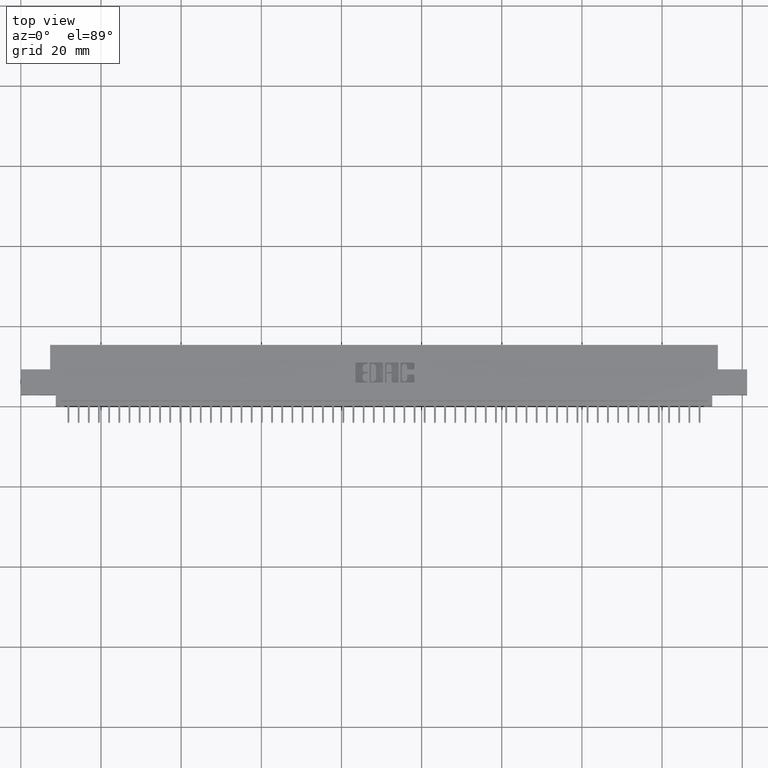
[diagram: clean part render]
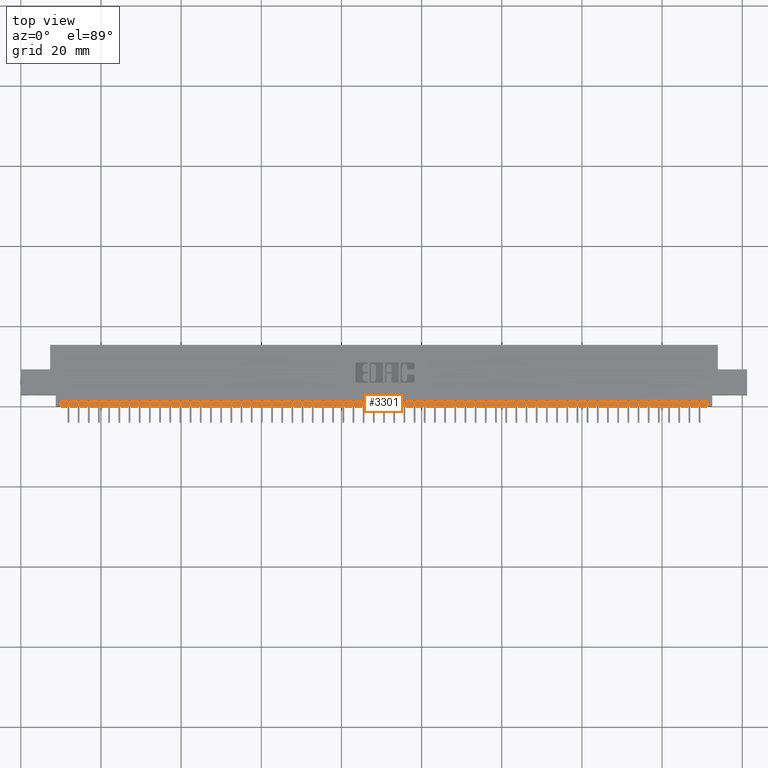
[diagram: same view with one face highlighted and labeled with its STEP entity id]
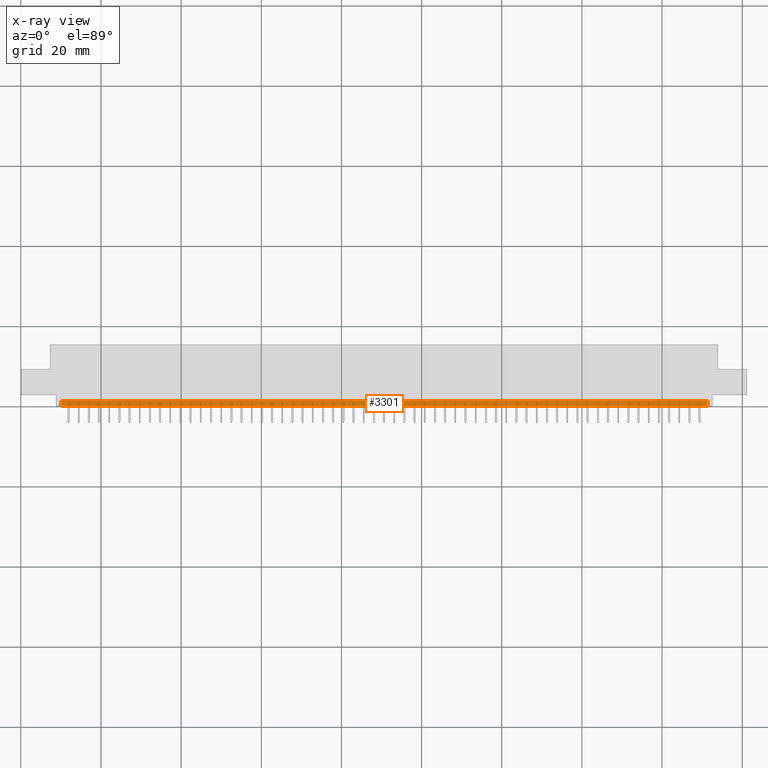
[diagram: x-ray of the same camera — body ghosted, the highlighted face saturated]
A machine part, top view. The second image highlights one B-rep face of the part: STEP entity #3301.
The next image is the same camera in x-ray: the body ghosted, the highlighted face saturated — about 0% of this face is hidden behind the body in this view.
In plain terms, the highlighted planar face has unit normal (0, 0, -1).
Its self-contained STEP definition (entity closure, byte-faithful):
#392 = DIRECTION ( 'NONE',  ( 1.000000000000000000, 0.0000000000000000000, 0.0000000000000000000 ) ) ;
#533 = VECTOR ( 'NONE', #392, 39.37007874015748143 ) ;
#1656 = EDGE_CURVE ( 'NONE', #42347, #28997, #10752, .T. ) ;
#1774 = DIRECTION ( 'NONE',  ( 1.000000000000000000, 0.0000000000000000000, 0.0000000000000000000 ) ) ;
#2100 = EDGE_CURVE ( 'NONE', #38212, #42347, #33191, .T. ) ;
#2150 = AXIS2_PLACEMENT_3D ( 'NONE', #9535, #24373, #46379 ) ;
#3301 = ADVANCED_FACE ( 'NONE', ( #45911 ), #21245, .F. ) ;
#3529 = ORIENTED_EDGE ( 'NONE', *, *, #1656, .F. ) ;
#4039 = CARTESIAN_POINT ( 'NONE',  ( 6.742500000000000604, 0.05000000000000000278, -0.1499999999999999944 ) ) ;
#8258 = CARTESIAN_POINT ( 'NONE',  ( 0.3925000000000002376, 0.05000000000000000278, -0.1499999999999999944 ) ) ;
#9535 = CARTESIAN_POINT ( 'NONE',  ( 0.3925000000000002376, 0.05000000000000000278, -0.1499999999999999944 ) ) ;
#10752 = LINE ( 'NONE', #4039, #37301 ) ;
#11470 = DIRECTION ( 'NONE',  ( -0.0000000000000000000, -1.000000000000000000, -0.0000000000000000000 ) ) ;
#13184 = EDGE_CURVE ( 'NONE', #38212, #43034, #46679, .T. ) ;
#14308 = EDGE_CURVE ( 'NONE', #43034, #28997, #34808, .T. ) ;
#17652 = CARTESIAN_POINT ( 'NONE',  ( 6.742500000000000604, 0.0000000000000000000, -0.1499999999999999944 ) ) ;
#17881 = CARTESIAN_POINT ( 'NONE',  ( 0.3925000000000002376, 0.05000000000000000278, -0.1499999999999999944 ) ) ;
#21245 = PLANE ( 'NONE',  #2150 ) ;
#21385 = ORIENTED_EDGE ( 'NONE', *, *, #13184, .T. ) ;
#23902 = EDGE_LOOP ( 'NONE', ( #46087, #3529, #44361, #21385 ) ) ;
#24373 = DIRECTION ( 'NONE',  ( 0.0000000000000000000, 0.0000000000000000000, -1.000000000000000000 ) ) ;
#24433 = DIRECTION ( 'NONE',  ( -0.0000000000000000000, -1.000000000000000000, -0.0000000000000000000 ) ) ;
#25442 = CARTESIAN_POINT ( 'NONE',  ( 6.742500000000000604, 0.05000000000000000278, -0.1499999999999999944 ) ) ;
#26672 = CARTESIAN_POINT ( 'NONE',  ( 0.3925000000000002376, 0.0000000000000000000, -0.1499999999999999944 ) ) ;
#28558 = VECTOR ( 'NONE', #24433, 39.37007874015748143 ) ;
#28997 = VERTEX_POINT ( 'NONE', #17652 ) ;
#33191 = LINE ( 'NONE', #17881, #533 ) ;
#34808 = LINE ( 'NONE', #26672, #39404 ) ;
#37301 = VECTOR ( 'NONE', #11470, 39.37007874015748143 ) ;
#38212 = VERTEX_POINT ( 'NONE', #8258 ) ;
#38773 = CARTESIAN_POINT ( 'NONE',  ( 0.3925000000000002376, 0.0000000000000000000, -0.1499999999999999944 ) ) ;
#39404 = VECTOR ( 'NONE', #1774, 39.37007874015748143 ) ;
#39983 = CARTESIAN_POINT ( 'NONE',  ( 0.3925000000000002376, 0.05000000000000000278, -0.1499999999999999944 ) ) ;
#42347 = VERTEX_POINT ( 'NONE', #25442 ) ;
#43034 = VERTEX_POINT ( 'NONE', #38773 ) ;
#44361 = ORIENTED_EDGE ( 'NONE', *, *, #2100, .F. ) ;
#45911 = FACE_OUTER_BOUND ( 'NONE', #23902, .T. ) ;
#46087 = ORIENTED_EDGE ( 'NONE', *, *, #14308, .T. ) ;
#46379 = DIRECTION ( 'NONE',  ( -1.000000000000000000, 0.0000000000000000000, -0.0000000000000000000 ) ) ;
#46679 = LINE ( 'NONE', #39983, #28558 ) ;